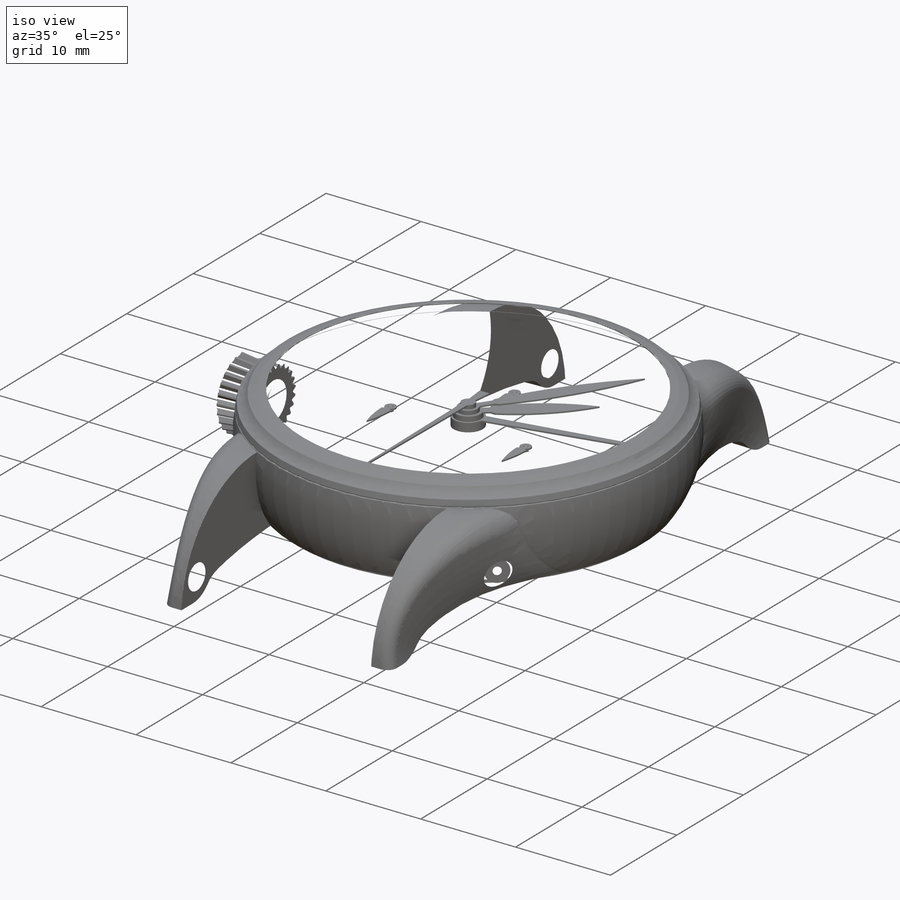
[diagram: iso view]
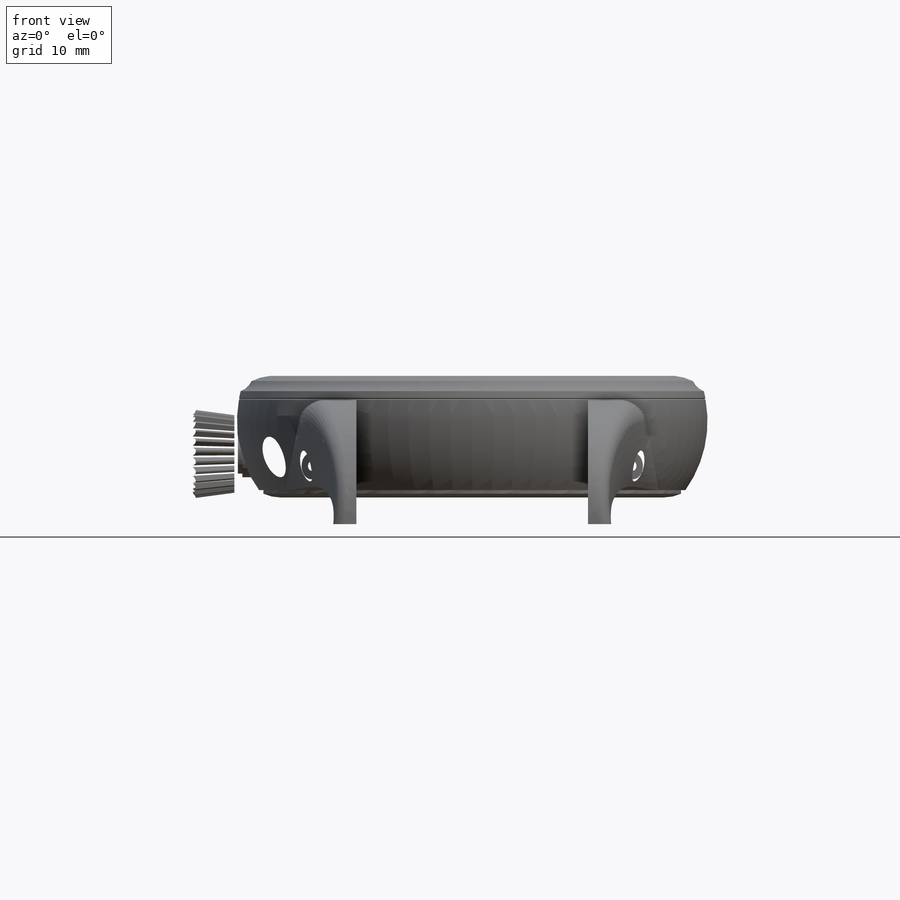
[diagram: front view]
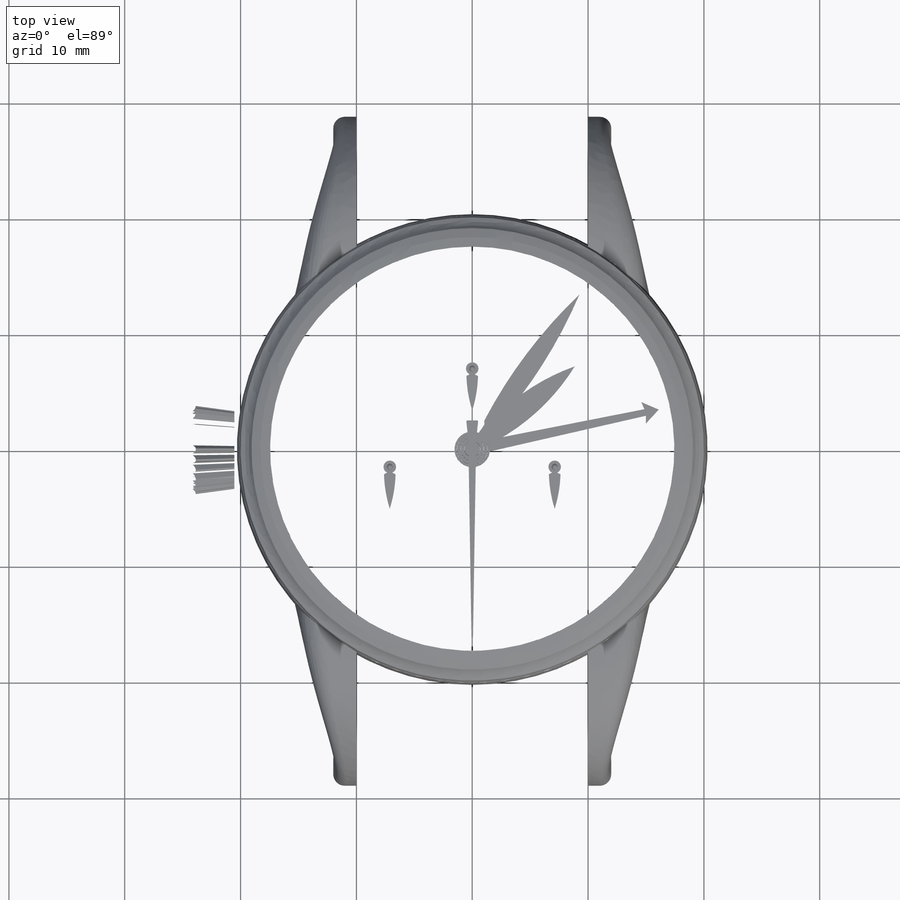
[diagram: top view]
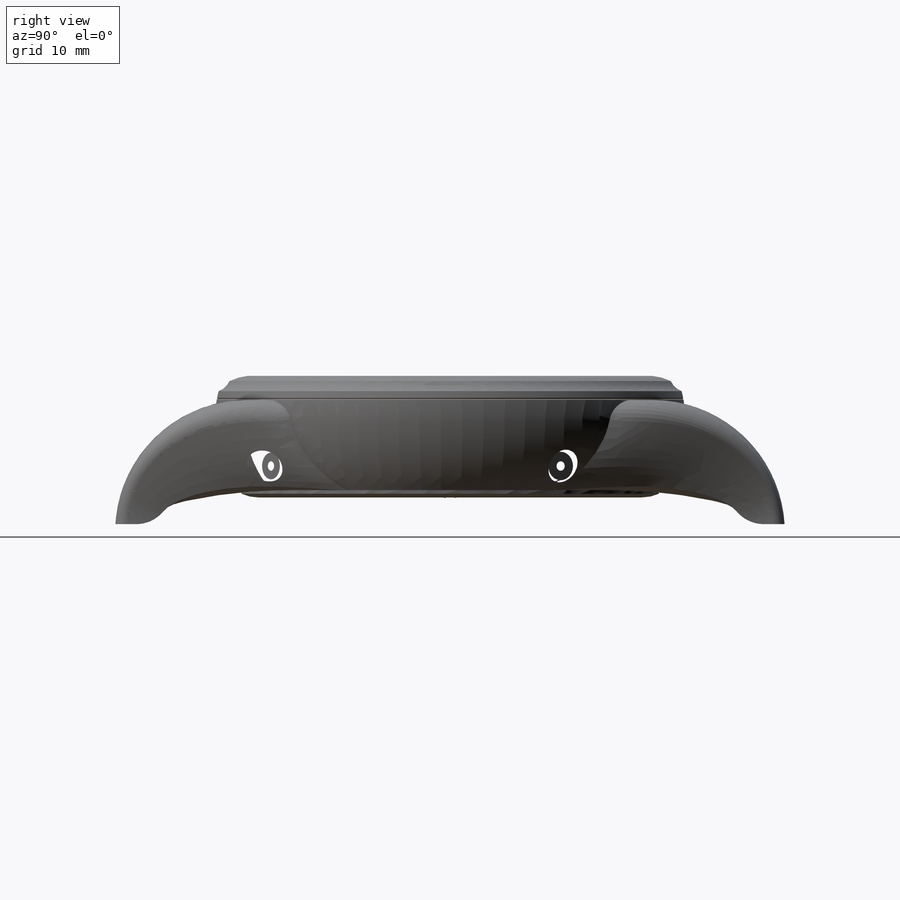
[diagram: right view]
SOLIDWORKS PART (.sldprt)
format: sldprt  version: not decoded by parser v0  size: 11,290,112 bytes
history: native  units: mm
features: sketch x67, plane x18, extrude x18, fillet x8, cut_extrude x7, chamfer x7, sweep x5, dome x5, revolve x4, mirror x4, pattern_circular x4, boolean_combine x3, cut_revolve x2, material x1 (+8 scaffold rows collapsed)
feature tree (161):
  scaffold x8  (default folders/planes/origin — collapsed)
  material  "Materiał <nieokreślony>"
  plane  "Płaszczyzna przednia"
  plane  "Płaszczyzna górna"
  plane  "Płaszczyzna prawa"
  sketch  "Szkic1"  dims[c1.D1=20.0mm c1.D2=10.5mm c2.D1=20.0mm]
  revolve  "Obrót1"  Angle=360deg
  sketch  "Szkic2"  dims[D1=0.0mm]
  cut_extrude  "Wytnij-wyciągnięcie1"  Depth=3mm
  plane  "Płaszczyzna1"  Offset=8.5mm
  fillet  "Zaokrąglenie1"  Radius=0.1mm
  boolean_combine  "Połącz1"
  plane  "Płaszczyzna7"  Offset=30mm
  sketch  "Szkic13"  dims[D1=10.0mm]
  sketch  "Szkic14"
  fillet  "Linia podziałowa8"  [1 undecoded]
  plane  "Płaszczyzna8"
  sketch  "Szkic15"  dims[D1=10.0mm]
  plane  "Płaszczyzna9"
  sketch  "Szkic16"  dims[D1=2.0mm]
  sketch  "Szkic17"
  plane  "Płaszczyzna10"
  sketch  "Szkic 3D2"
  boolean_combine  "Szkic 3D3"
  boolean_combine  "Szkic 3D4"
  mirror  "Lustro9"
  sketch  "Lustro10"  dims[D0=1.0mm D1=2.0mm]
  mirror  "Zmienne zaokrąglenie2"
  mirror  "Zmienne zaokrąglenie3"
  mirror  "Zmienne zaokrąglenie4"
  sketch  "Szkic21"  dims[D1=3.5mm]
  plane  "Płaszczyzna11"
  sketch  "Szkic22"  dims[D1=3.5mm]
  cut_extrude  "Wytnij-wyciągnięcie6"  [1 undecoded]
  extrude  "Dodanie-wyciągnięcie2"  [1 undecoded]
  sketch  "Szkic22<2>"
  sketch  "Szkic23"
  revolve  "Obrót2"  Angle=360deg
  sketch  "Szkic24"
  sketch  "Szkic25"
  sweep  "Wyciągnięcie po ścieżce1"
  pattern_circular  "Szyk kołowy1"  Count=25 Angle=360deg
  sketch  "Szkic26"
  cut_revolve  "Wycięcie-obrót5"  Angle=360deg
  dome  "Kopuła1"
  plane  "Płaszczyzna12"
  sketch  "Szkic27"  dims[D2=0.5mm D3=~0.179684mm D1=0.4mm]
  extrude  "Dodanie-wyciągnięcie3"  Depth=0.1mm
  plane  "Płaszczyzna13"
  sketch  "Szkic28"  dims[D1=3.5mm]
  plane  "Płaszczyzna14"
  sketch  "Szkic29"  dims[D1=3.5mm]
  cut_extrude  "Wytnij-wyciągnięcie7"  Depth=1mm
  sketch  "Szkic30"
  revolve  "Obrót3"  Angle=360deg
  chamfer  "Sfazowanie1"  Distance=0.3mm Angle=45deg
  sketch  "Lustro11"
  cut_revolve  "Sfazowanie2"  Angle=45deg
  sketch  "Szkic31"
  plane  "Płaszczyzna15"
  sketch  "Szkic32"  dims[D1=~1.234933mm]
  sweep  "Wycięcie-obrót6"
  sketch  "Szkic33"  dims[c1.D1=0.08mm c2.D1=1.5mm c2.D5=0.1mm c2.D6=10.0mm c2.D7=5.0mm]
  sketch  "Szkic34"  dims[D1=0.0mm]
  extrude  "Dodanie-wyciągnięcie4"  Depth=1.6mm
  sketch  "Szkic35"
  sweep  "Wycięcie-obrót7"
  sketch  "Lustro13"
  plane  "Płaszczyzna16"
  sketch  "Szkic36"
  sketch  "Szkic37"  dims[D1=1.5mm]
  sweep  "Wycięcie-obrót8"
  sketch  "Szkic38"  dims[D1=0.08mm]
  dome  "Wyciągnięcie-cienka ścianka2"
  sketch  "Szkic39"  dims[D1=0.0mm]
  extrude  "Dodanie-wyciągnięcie5"  Depth=1.3mm
  sketch  "Szkic40"
  sweep  "Wycięcie-obrót9"
  sketch  "Szkic41"  dims[c1.D2=~22.806479mm c1.D3=22.0mm c1.D4=16.0mm c1.D5=~2.027374mm c2.D5=30.0deg c2.D9=90.0deg c2.D2=0.0mm c2.D10=0.0mm c2.D11=0.0mm c2.D1=0.0mm c3.D5=0.0mm c3.D6=0.0mm c3.D7=0.0mm c3.D8=0.0mm]
  extrude  "Dodanie-wyciągnięcie6"  Depth=0.2mm
  sketch  "Szkic42"  dims[c1.D1=~10.173444mm c2.D1=80.0deg]
  cut_extrude  "Wytnij-wyciągnięcie8"  Depth=0.3mm
  sketch  "Szkic43"
  cut_extrude  "Wytnij-wyciągnięcie9"  Depth=0.7mm
  sketch  "Szkic44"  dims[c1.D3=~3.734284mm c2.D3=60.0deg c2.D4=0.15mm c2.D6=~0.579707mm c3.D6=60.0deg c3.D7=0.15mm c3.D8=60.0deg c3.D9=0.15mm c3.D1=0.3mm c3.D2=0.2mm c4.D9=0.05mm]
  extrude  "Dodanie-wyciągnięcie7"  Depth=0.1mm
  sketch  "Szkic45"  dims[D1=0.1mm]
  sketch  "Szkic46"  dims[D1=1.2mm]
  fillet  "Linia podziałowa9"  [1 undecoded]
  sketch  "Szkic47"
  chamfer  "Zawijaj2"  Distance=0.1mm
  sketch  "Szkic48"  dims[D1=0.5mm D2=~0.179684mm]
  chamfer  "Zawijaj3"  Distance=0.2mm
  sketch  "Szkic49"
  chamfer  "Zawijaj4"  Distance=0.1mm
  sketch  "Szkic50"
  chamfer  "Zawijaj5"  Distance=0.2mm
  sketch  "Szkic51"
  cut_extrude  "Wytnij-wyciągnięcie10"  Depth=0.2mm
  sketch  "Szkic52"  dims[D1=0.02mm]
  extrude  "Dodanie-wyciągnięcie8"  Depth=0.4mm
  sketch  "Szkic53"  dims[c1.D1=~0.383627mm c1.D2=~0.383627mm c2.D1=0.02mm]
  extrude  "Dodanie-wyciągnięcie9"  Depth=0.4mm
  sketch  "Szkic54"  dims[D1=0.02mm]
  extrude  "Dodanie-wyciągnięcie10"  Depth=0.4mm
  plane  "Płaszczyzna17"  Offset=0.09mm
  sketch  "Szkic55"
  extrude  "Dodanie-wyciągnięcie11"  Depth=0.15mm
  plane  "Płaszczyzna18"
  sketch  "Szkic56"
  extrude  "Dodanie-wyciągnięcie12"  Depth=0.15mm
  sketch  "Szkic57"
  extrude  "Dodanie-wyciągnięcie13"  Depth=0.15mm
  sketch  "Szkic58"  dims[D1=~2.927894mm]
  cut_extrude  "Wytnij-wyciągnięcie11"  Depth=0.5mm
  sketch  "Szkic59"  dims[D1=0.02mm]
  dome  "Wyciągnięcie-cienka ścianka3"
  pattern_circular  "Kopuła2"  [2 undecoded]
  pattern_circular  "Kopuła3"  [2 undecoded]
  pattern_circular  "Kopuła4"  [2 undecoded]
  sketch  "Szkic60"  dims[c1.D1=1.0mm c1.D2=0.58mm c1.D3=~15.221689mm c2.D3=102.0deg]
  extrude  "Dodanie-wyciągnięcie14"  Depth=0.15mm
  sketch  "Szkic61"
  fillet  "Linia podziałowa10"  [1 undecoded]
  sketch  "Szkic62"  dims[D1=0.02mm]
  dome  "Wyciągnięcie-cienka ścianka4"
  sketch  "Szkic63"
  extrude  "Dodanie-wyciągnięcie16"  Depth=0.15mm
  sketch  "Szkic64"  dims[D1=0.2mm]
  fillet  "Linia podziałowa14"  [1 undecoded]
  sketch  "Szkic65"  dims[D1=0.02mm]
  dome  "Wyciągnięcie-cienka ścianka5"
  sketch  "Szkic66"
  extrude  "Dodanie-wyciągnięcie17"  Depth=0.15mm
  sketch  "Szkic67"  dims[D1=0.2mm]
  fillet  "Linia podziałowa15"  [1 undecoded]
  sketch  "Szkic68"  dims[D1=0.02mm]
  extrude  "Dodanie-wyciągnięcie18"  Depth=2.2mm
  sketch  "Szkic69"  dims[D1=0.1mm]
  extrude  "Dodanie-wyciągnięcie19"  Depth=0.15mm
  sketch  "Szkic71"  dims[D2=0.1mm D3=0.1mm D1=1.0mm]
  revolve  "Obrót4"  Angle=360deg
  sketch  "Szkic72"
  extrude  "Dodanie-wyciągnięcie20"  Depth=0.5mm
  sketch  "Szkic73"
  chamfer  "Zawijaj6"  Distance=0.1mm
  sketch  "Szkic74"
  chamfer  "Zawijaj7"  Distance=0.1mm
  plane  "Płaszczyzna19"  Offset=25mm
  sketch  "Szkic75"
  fillet  "Linia podziałowa16"  [1 undecoded]
  plane  "Płaszczyzna20"  Offset=21mm
  sketch  "Szkic76"
  fillet  "Linia podziałowa17"  [1 undecoded]
decode coverage: 74 of 134 modeling features carry decoded parameters
note: ~ marks probable driven/reference dimensions
note: 15 parameter values undecoded
summary: no parameter record found for 9 features; profile_refs inferred from adjacent sketches, not decoded
note: suppression state not decoded; provenance and decode notes live in map.json
